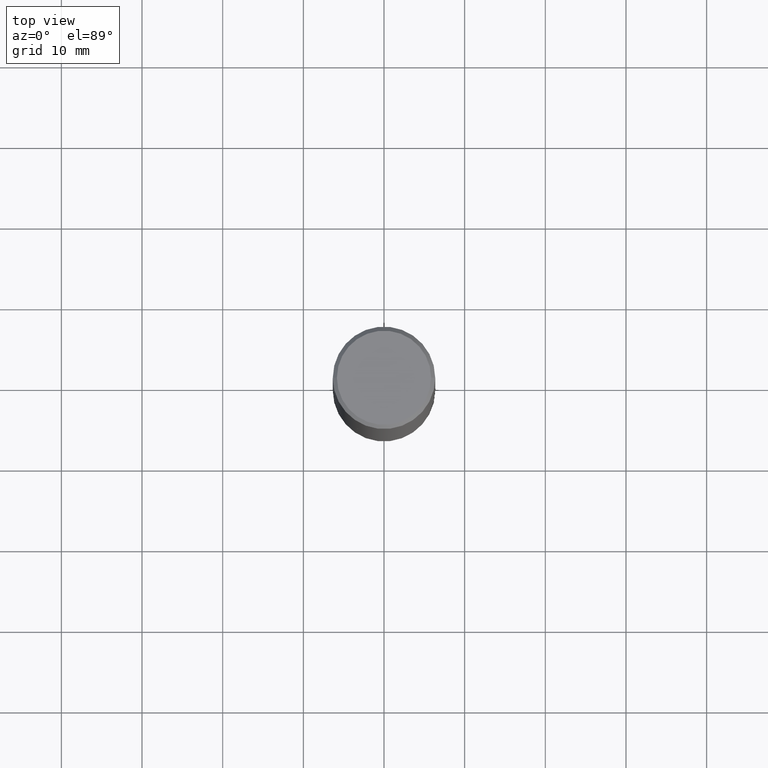
[diagram: clean part render]
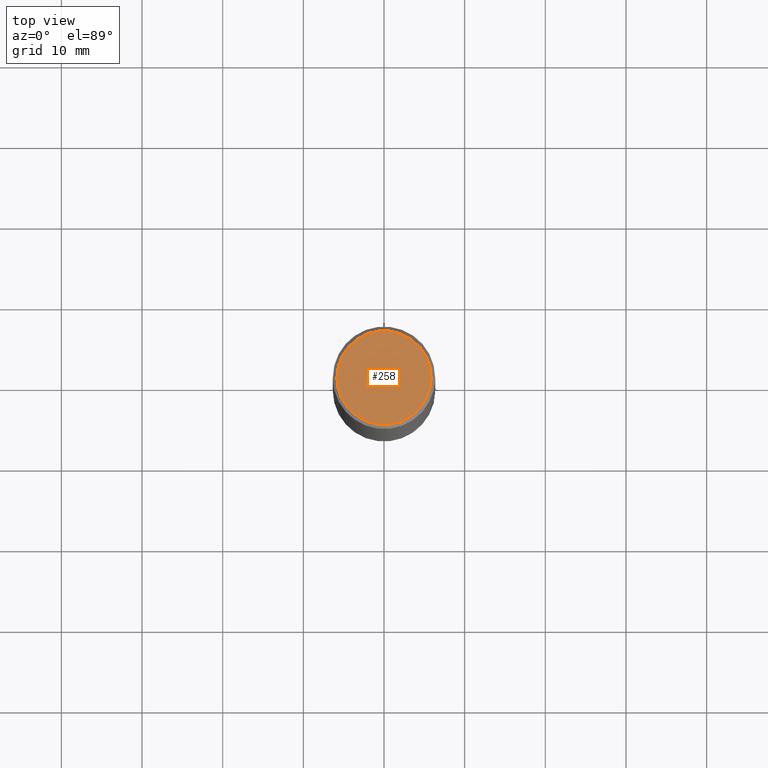
[diagram: same view with one face highlighted and labeled with its STEP entity id]
A machine part, top view. The second image highlights one B-rep face of the part: STEP entity #258.
In plain terms, the highlighted planar face has unit normal (0, -0, -1).
Its self-contained STEP definition (entity closure, byte-faithful):
#24 = CARTESIAN_POINT ( 'NONE',  ( -0.2299999999999997324, 1.640996229256270744E-15, 4.268512490089056766E-18 ) ) ;
#58 = CARTESIAN_POINT ( 'NONE',  ( 0.2299999999999997324, -1.681434332853597433E-15, 4.268512490111905999E-18 ) ) ;
#63 = CIRCLE ( 'NONE', #109, 0.2299999999999997324 ) ;
#66 = DIRECTION ( 'NONE',  ( -1.000000000000000000, 6.982962677686265922E-15, -4.876176775795935793E-29 ) ) ;
#73 = ORIENTED_EDGE ( 'NONE', *, *, #338, .T. ) ;
#82 = AXIS2_PLACEMENT_3D ( 'NONE', #302, #353, #66 ) ;
#88 = VERTEX_POINT ( 'NONE', #58 ) ;
#94 = DIRECTION ( 'NONE',  ( -2.445468806185136597E-29, 3.491481338843145583E-15, 1.000000000000000000 ) ) ;
#102 = VERTEX_POINT ( 'NONE', #24 ) ;
#109 = AXIS2_PLACEMENT_3D ( 'NONE', #200, #314, #250 ) ;
#121 = CIRCLE ( 'NONE', #330, 0.2299999999999997324 ) ;
#130 = DIRECTION ( 'NONE',  ( 1.000000000000000000, -6.982962677686266711E-15, 4.876225828469314487E-29 ) ) ;
#134 = ORIENTED_EDGE ( 'NONE', *, *, #264, .T. ) ;
#184 = PLANE ( 'NONE',  #82 ) ;
#200 = CARTESIAN_POINT ( 'NONE',  ( -1.043851414335219820E-46, 1.490343170380447200E-32, 4.268512490100411279E-18 ) ) ;
#250 = DIRECTION ( 'NONE',  ( 1.000000000000000000, -6.982962677686266711E-15, 4.876225828469314487E-29 ) ) ;
#258 = ADVANCED_FACE ( 'NONE', ( #282 ), #184, .F. ) ;
#264 = EDGE_CURVE ( 'NONE', #88, #102, #121, .T. ) ;
#282 = FACE_OUTER_BOUND ( 'NONE', #319, .T. ) ;
#302 = CARTESIAN_POINT ( 'NONE',  ( 1.606081415867839292E-15, 0.2299999999999997324, -8.009064516888723911E-16 ) ) ;
#314 = DIRECTION ( 'NONE',  ( -2.445468806185136597E-29, 3.491481338843145583E-15, 1.000000000000000000 ) ) ;
#319 = EDGE_LOOP ( 'NONE', ( #73, #134 ) ) ;
#330 = AXIS2_PLACEMENT_3D ( 'NONE', #355, #94, #130 ) ;
#338 = EDGE_CURVE ( 'NONE', #102, #88, #63, .T. ) ;
#353 = DIRECTION ( 'NONE',  ( 2.438088387897960049E-29, -3.491481338843145188E-15, -1.000000000000000000 ) ) ;
#355 = CARTESIAN_POINT ( 'NONE',  ( -1.043851414335219820E-46, 1.490343170380447200E-32, 4.268512490100411279E-18 ) ) ;